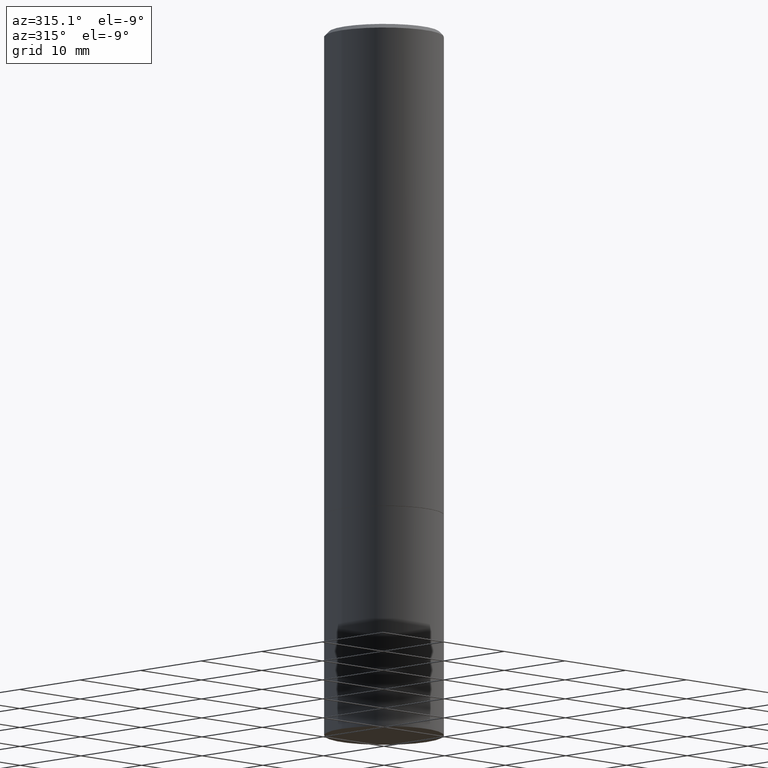
[diagram: clean part render]
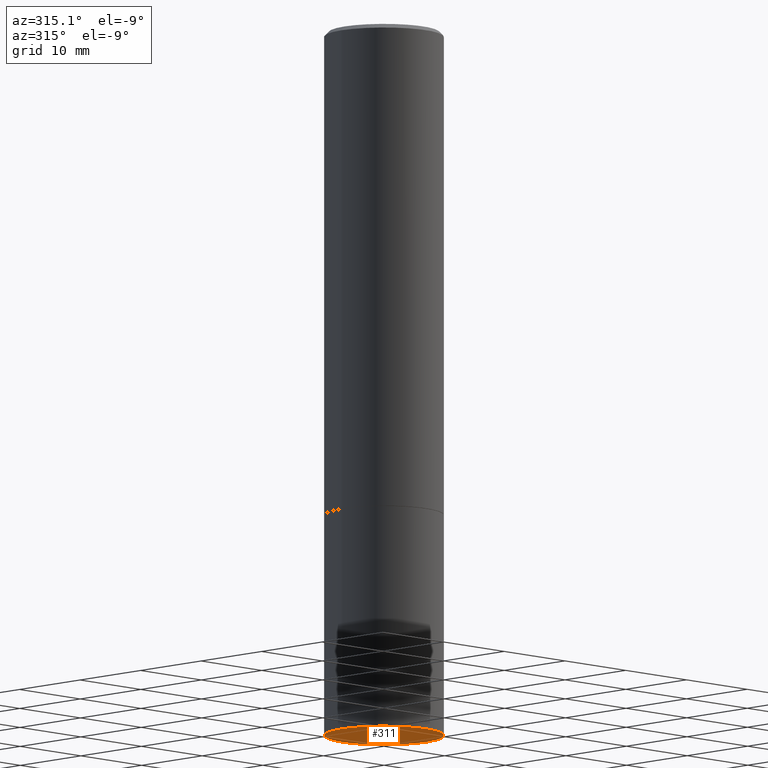
[diagram: same view with one face highlighted and labeled with its STEP entity id]
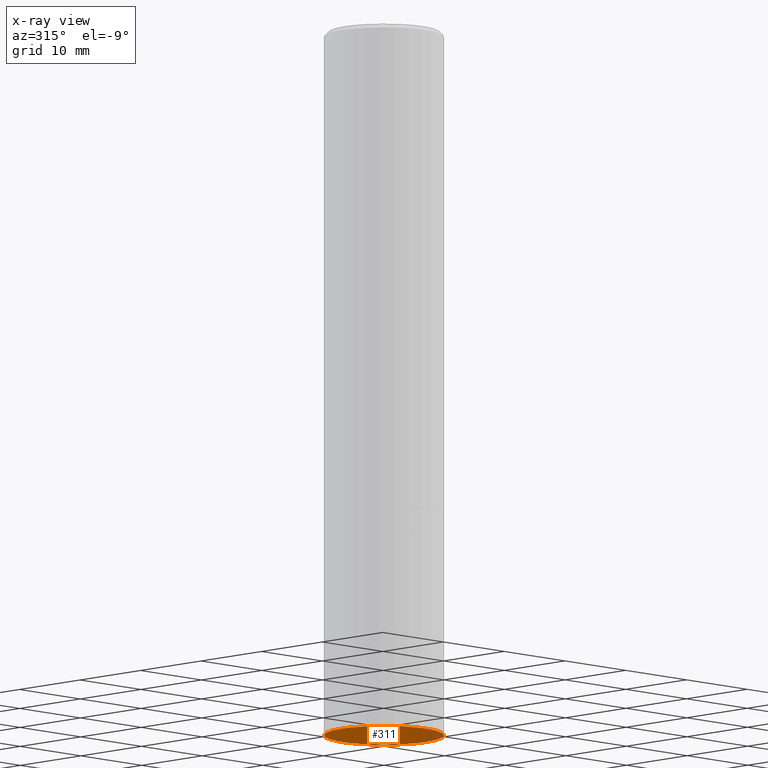
[diagram: x-ray of the same camera — body ghosted, the highlighted face saturated]
A machine part, auxiliary view. The second image highlights one B-rep face of the part: STEP entity #311.
The next image is the same camera in x-ray: the body ghosted, the highlighted face saturated — about 0% of this face is hidden behind the body in this view.
In plain terms, the highlighted planar face has unit normal (0, -0, -1).
Its self-contained STEP definition (entity closure, byte-faithful):
#2 = EDGE_LOOP ( 'NONE', ( #322, #285 ) ) ;
#14 = DIRECTION ( 'NONE',  ( 2.438088387897960049E-29, -3.491481338843145188E-15, -1.000000000000000000 ) ) ;
#30 = AXIS2_PLACEMENT_3D ( 'NONE', #267, #150, #261 ) ;
#45 = EDGE_CURVE ( 'NONE', #85, #352, #268, .T. ) ;
#49 = DIRECTION ( 'NONE',  ( -2.445468806185136597E-29, 3.491481338843145583E-15, 1.000000000000000000 ) ) ;
#81 = DIRECTION ( 'NONE',  ( -1.000000000000000000, 6.982962677686265922E-15, -4.876176775795935793E-29 ) ) ;
#82 = FACE_OUTER_BOUND ( 'NONE', #2, .T. ) ;
#85 = VERTEX_POINT ( 'NONE', #295 ) ;
#134 = AXIS2_PLACEMENT_3D ( 'NONE', #288, #49, #157 ) ;
#136 = CARTESIAN_POINT ( 'NONE',  ( 0.2756000000000000116, -1.333361808490808139E-14, -3.267700000000000049 ) ) ;
#150 = DIRECTION ( 'NONE',  ( -2.445468806185136597E-29, 3.491481338843145583E-15, 1.000000000000000000 ) ) ;
#157 = DIRECTION ( 'NONE',  ( 1.000000000000000000, -6.982962677686265922E-15, 0.000000000000000000 ) ) ;
#167 = CIRCLE ( 'NONE', #134, 0.2756000000000000116 ) ;
#201 = EDGE_CURVE ( 'NONE', #352, #85, #167, .T. ) ;
#227 = CARTESIAN_POINT ( 'NONE',  ( 1.924504513970415023E-15, 0.2755999999999886318, -3.267700000000001381 ) ) ;
#261 = DIRECTION ( 'NONE',  ( 1.000000000000000000, -6.982962677686265922E-15, 0.000000000000000000 ) ) ;
#267 = CARTESIAN_POINT ( 'NONE',  ( 7.991058417971171713E-29, -1.140911357093774644E-14, -3.267700000000000049 ) ) ;
#268 = CIRCLE ( 'NONE', #30, 0.2756000000000000116 ) ;
#273 = PLANE ( 'NONE',  #339 ) ;
#285 = ORIENTED_EDGE ( 'NONE', *, *, #45, .F. ) ;
#288 = CARTESIAN_POINT ( 'NONE',  ( 7.991058417971171713E-29, -1.140911357093774644E-14, -3.267700000000000049 ) ) ;
#295 = CARTESIAN_POINT ( 'NONE',  ( -0.2756000000000000116, -7.663917641962989379E-15, -3.267700000000000049 ) ) ;
#311 = ADVANCED_FACE ( 'NONE', ( #82 ), #273, .T. ) ;
#322 = ORIENTED_EDGE ( 'NONE', *, *, #201, .F. ) ;
#339 = AXIS2_PLACEMENT_3D ( 'NONE', #227, #14, #81 ) ;
#352 = VERTEX_POINT ( 'NONE', #136 ) ;